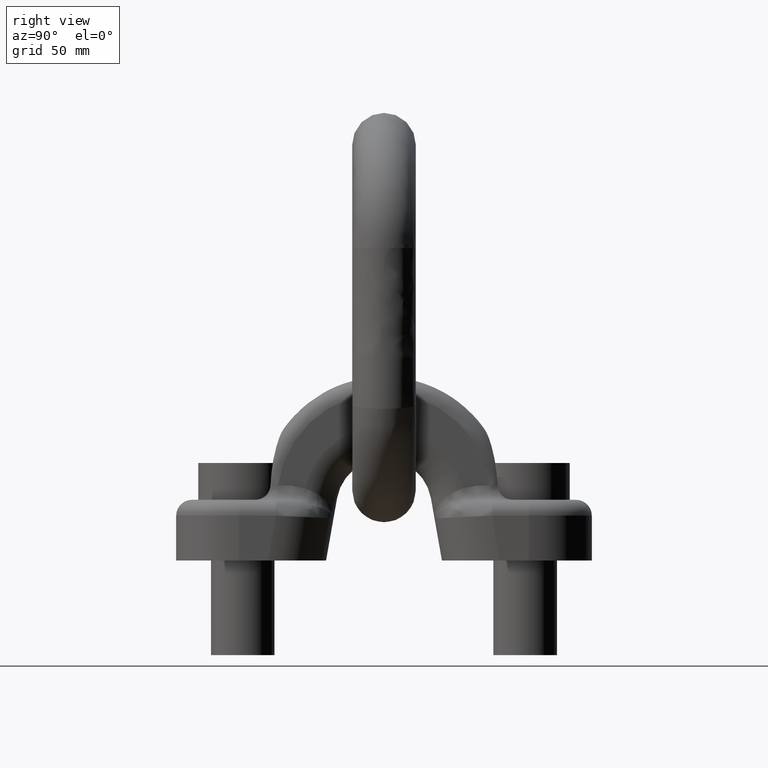
[diagram: clean part render]
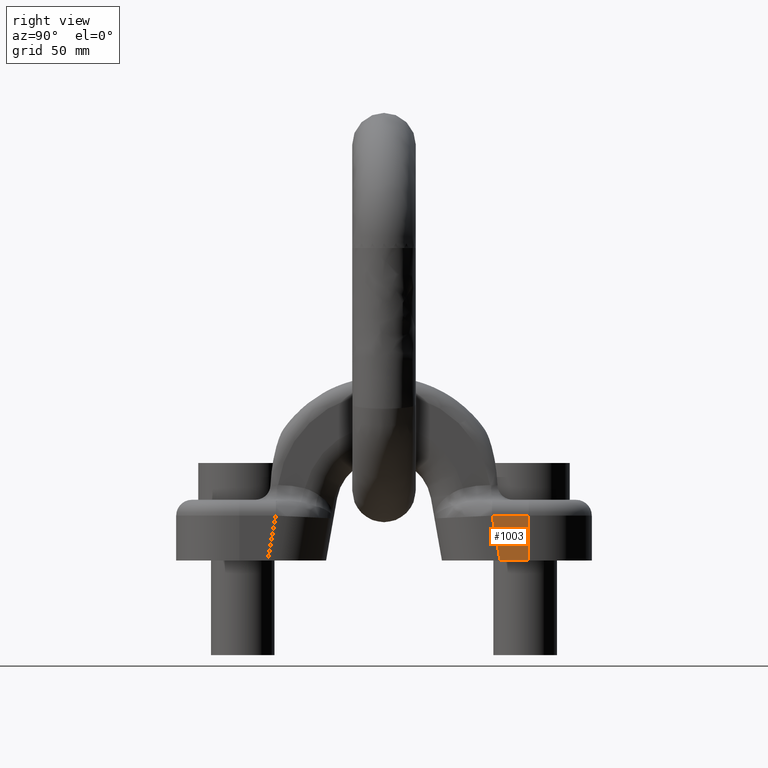
[diagram: same view with one face highlighted and labeled with its STEP entity id]
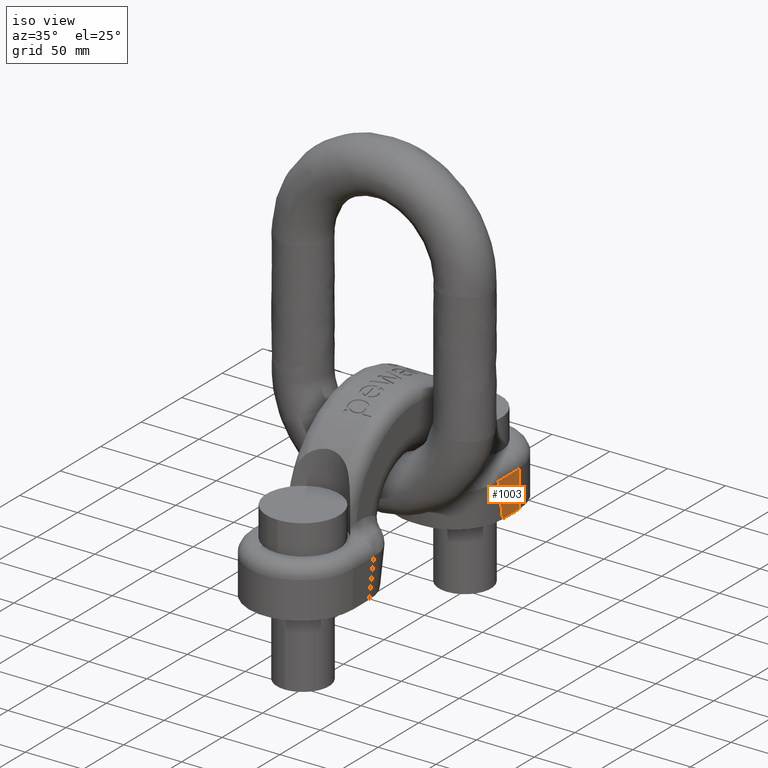
[diagram: same view with one face highlighted and labeled with its STEP entity id]
A machine part, right view. The second image highlights one B-rep face of the part: STEP entity #1003.
A second angle (iso view) of the same face is appended — the face is thin or edge-on in the first view.
In plain terms, the highlighted planar face has unit normal (-1, 0, 0).
Its self-contained STEP definition (entity closure, byte-faithful):
#746=PLANE('',#3662);
#851=FACE_OUTER_BOUND('',#1538,.T.);
#1003=ADVANCED_FACE('',(#851),#746,.F.);
#1219=LINE('',#5243,#1333);
#1220=LINE('',#5246,#1334);
#1221=LINE('',#5248,#1335);
#1222=LINE('',#5250,#1336);
#1333=VECTOR('',#3948,1.);
#1334=VECTOR('',#3949,1.);
#1335=VECTOR('',#3950,1.);
#1336=VECTOR('',#3951,1.);
#1538=EDGE_LOOP('',(#2199,#2200,#2201,#2202));
#2199=ORIENTED_EDGE('',*,*,#3297,.F.);
#2200=ORIENTED_EDGE('',*,*,#3298,.T.);
#2201=ORIENTED_EDGE('',*,*,#3299,.T.);
#2202=ORIENTED_EDGE('',*,*,#3300,.T.);
#3009=VERTEX_POINT('',#5244);
#3010=VERTEX_POINT('',#5245);
#3011=VERTEX_POINT('',#5247);
#3012=VERTEX_POINT('',#5249);
#3297=EDGE_CURVE('',#3009,#3010,#1219,.T.);
#3298=EDGE_CURVE('',#3009,#3011,#1220,.T.);
#3299=EDGE_CURVE('',#3011,#3012,#1221,.T.);
#3300=EDGE_CURVE('',#3012,#3010,#1222,.T.);
#3662=AXIS2_PLACEMENT_3D('',#5251,#3952,#3953);
#3948=DIRECTION('',(0.,0.,-1.));
#3949=DIRECTION('',(0.,-1.,-4.58769844886429E-16));
#3950=DIRECTION('',(0.,0.17364817766693,-0.984807753012208));
#3951=DIRECTION('',(0.,1.,0.));
#3952=DIRECTION('',(-1.,0.,0.));
#3953=DIRECTION('',(0.,0.,1.));
#5243=CARTESIAN_POINT('',(45.,102.5,272.));
#5244=CARTESIAN_POINT('',(45.,102.5,31.75));
#5245=CARTESIAN_POINT('',(45.,102.5,0.));
#5246=CARTESIAN_POINT('',(45.,-102.5,31.7499999999999));
#5247=CARTESIAN_POINT('',(45.,76.5415513071216,31.75));
#5248=CARTESIAN_POINT('',(45.,80.8998691602371,7.03275119551065));
#5249=CARTESIAN_POINT('',(45.,82.1399329446153,0.));
#5250=CARTESIAN_POINT('',(45.,-102.5,0.));
#5251=CARTESIAN_POINT('',(45.,-102.5,272.));